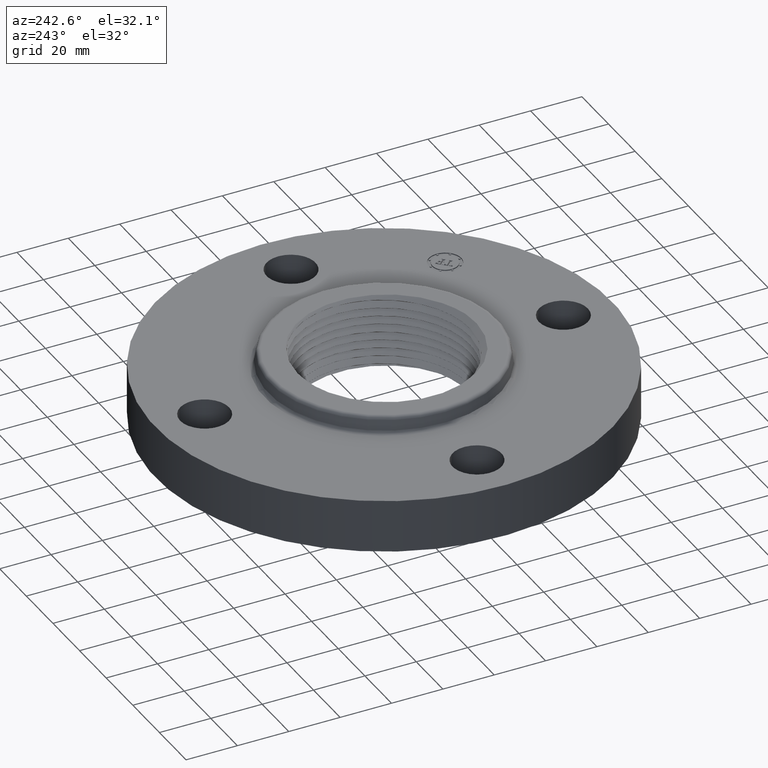
[diagram: clean part render]
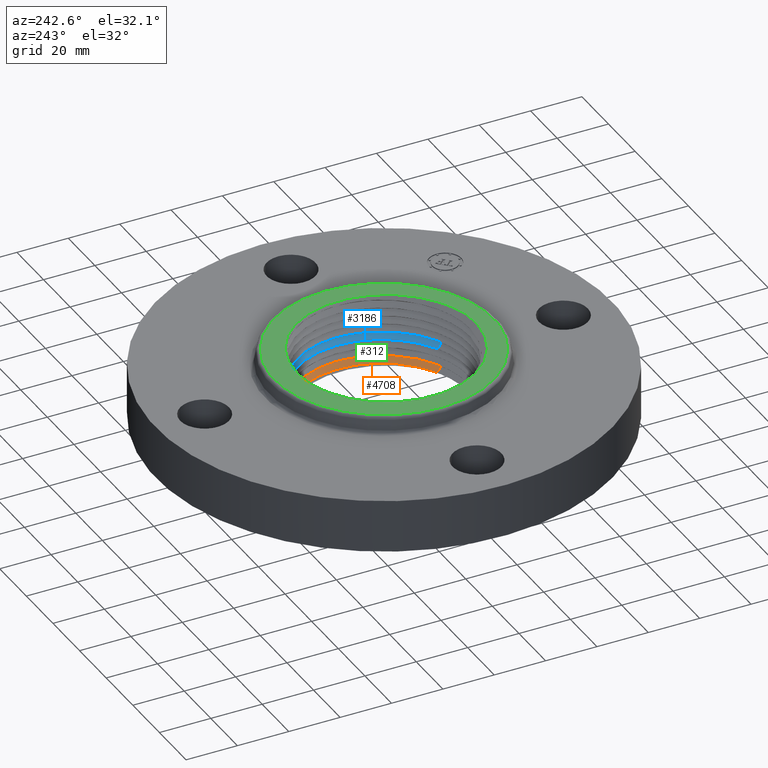
[diagram: same view with three faces highlighted in distinct colors, each labeled with its STEP entity id]
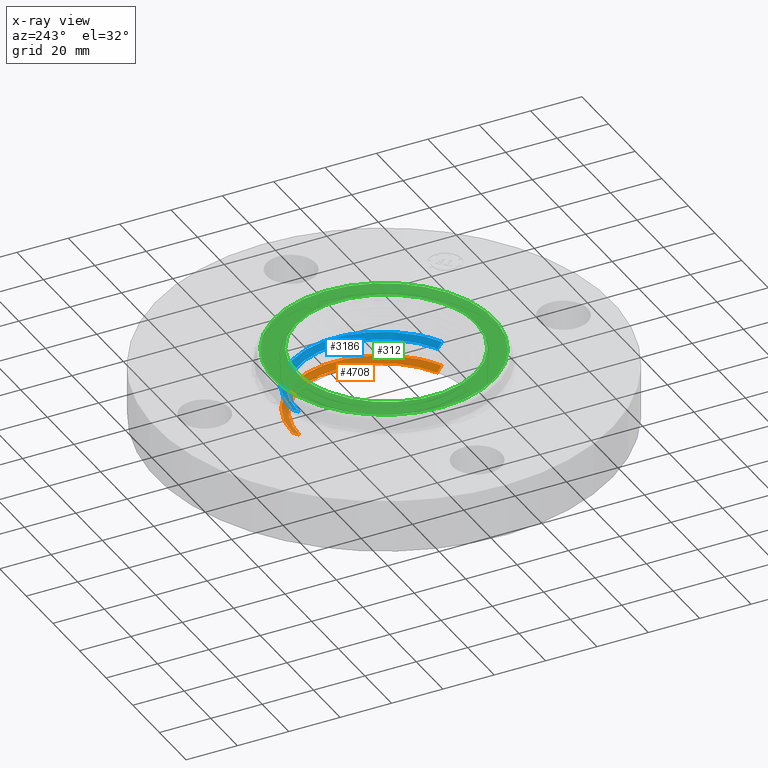
[diagram: x-ray of the same camera — body ghosted, the three highlighted faces saturated]
A machine part, auxiliary view with three faces highlighted in distinct colors.
The next image is the same camera in x-ray (body ghosted, the three faces saturated) — at least one of them is partly hidden behind the body in this view.
Their STEP definitions:

[orange] entity #4708 — the highlighted face is a freeform B-spline surface patch.
#4407=CARTESIAN_POINT('Vertex',(9.31382288949E-007,1.39982578902,0.118438258662)) ;
#4411=CARTESIAN_POINT('Control Point',(9.31382290181E-007,1.39982578902,0.118438258662)) ;
#4412=CARTESIAN_POINT('Control Point',(0.369802707792,1.39966130537,0.113182624294)) ;
#4413=CARTESIAN_POINT('Control Point',(0.739551260054,1.27738039289,0.107926203491)) ;
#4414=CARTESIAN_POINT('Control Point',(1.05402522751,1.03306920796,0.102686700707)) ;
#4415=CARTESIAN_POINT('Control Point',(1.47376987066,0.376890566379,0.092170637837)) ;
#4416=CARTESIAN_POINT('Control Point',(1.41993260763,-0.400199826442,0.0816513746025)) ;
#4417=CARTESIAN_POINT('Control Point',(1.26099978775,-0.765383205665,0.076408721246)) ;
#4418=CARTESIAN_POINT('Control Point',(0.994948604297,-1.04986639089,0.0711474768857)) ;
#4419=CARTESIAN_POINT('Control Point',(0.67032407038,-1.22702192539,0.0658854425888)) ;
#4420=CARTESIAN_POINT('Vertex',(0.67032407038,-1.22702192539,0.0658854425888)) ;
#4542=CARTESIAN_POINT('Vertex',(0.622123195445,-1.13874545108,0.00731089656578)) ;
#4546=CARTESIAN_POINT('Control Point',(0.622123195445,-1.13874545108,0.00731089656578)) ;
#4547=CARTESIAN_POINT('Control Point',(0.682134088852,-1.10599742415,0.00835903840812)) ;
#4548=CARTESIAN_POINT('Control Point',(0.739989298286,-1.06929673685,0.00940716533366)) ;
#4549=CARTESIAN_POINT('Control Point',(0.795626976139,-1.0286616642,0.010460168154)) ;
#4550=CARTESIAN_POINT('Control Point',(0.901388717749,-0.939987117578,0.0125709674638)) ;
#4551=CARTESIAN_POINT('Control Point',(0.994499817701,-0.838138786693,0.0146814611059)) ;
#4552=CARTESIAN_POINT('Control Point',(1.03746917195,-0.784311538002,0.0157341582583)) ;
#4553=CARTESIAN_POINT('Control Point',(1.11558509188,-0.672123842014,0.0178254736205)) ;
#4554=CARTESIAN_POINT('Control Point',(1.17835102095,-0.55069027181,0.0199163783074)) ;
#4555=CARTESIAN_POINT('Control Point',(1.20595084804,-0.487575788431,0.0209690330363)) ;
#4556=CARTESIAN_POINT('Control Point',(1.25269038436,-0.357418515565,0.023083571455)) ;
#4557=CARTESIAN_POINT('Control Point',(1.28180247222,-0.222205732096,0.025198169952)) ;
#4558=CARTESIAN_POINT('Control Point',(1.29172993297,-0.154022865663,0.0262508847591)) ;
#4559=CARTESIAN_POINT('Control Point',(1.30264370089,-0.0174715565392,0.0283457397308)) ;
#4560=CARTESIAN_POINT('Control Point',(1.29556535513,0.119366863189,0.0304413795119)) ;
#4561=CARTESIAN_POINT('Control Point',(1.28747406143,0.187713317571,0.0314932451359)) ;
#4562=CARTESIAN_POINT('Control Point',(1.26235205817,0.322689492087,0.0335923438907)) ;
#4563=CARTESIAN_POINT('Control Point',(1.21972222557,0.45319997271,0.0356913783486)) ;
#4564=CARTESIAN_POINT('Control Point',(1.19409073603,0.517152870912,0.0367437385913)) ;
#4565=CARTESIAN_POINT('Control Point',(1.13429604769,0.641547141808,0.0388532413919)) ;
#4566=CARTESIAN_POINT('Control Point',(1.05861939814,0.756943964063,0.040962439905)) ;
#4567=CARTESIAN_POINT('Control Point',(1.01708380769,0.811886854091,0.0420144958602)) ;
#4568=CARTESIAN_POINT('Control Point',(0.927688945172,0.915318003619,0.0441045648861)) ;
#4569=CARTESIAN_POINT('Control Point',(0.825546819348,1.00616914608,0.0461942258606)) ;
#4570=CARTESIAN_POINT('Control Point',(0.771219186826,1.04852333395,0.0472462406019)) ;
#4571=CARTESIAN_POINT('Control Point',(0.656669330982,1.12601035985,0.0493594746762)) ;
#4572=CARTESIAN_POINT('Control Point',(0.532865239859,1.18767850102,0.0514727674693)) ;
#4573=CARTESIAN_POINT('Control Point',(0.469259846037,1.21417357081,0.0525248409293)) ;
#4574=CARTESIAN_POINT('Control Point',(0.339683281827,1.25854257577,0.0546180036884)) ;
#4575=CARTESIAN_POINT('Control Point',(0.205378651472,1.28556776635,0.0567119473378)) ;
#4576=CARTESIAN_POINT('Control Point',(0.137185031315,1.29465547991,0.0577627364483)) ;
#4577=CARTESIAN_POINT('Control Point',(0.0685842834184,1.29921537755,0.0588132320117)) ;
#4578=CARTESIAN_POINT('Control Point',(-1.97097828325E-005,1.29924716413,0.0598637122694)) ;
#4579=CARTESIAN_POINT('Vertex',(-1.97097828301E-005,1.29924716413,0.0598637122694)) ;
#4676=CARTESIAN_POINT('Control Point',(-1.99816522472E-005,1.29792242049,0.0590922137744)) ;
#4677=CARTESIAN_POINT('Control Point',(9.31382290181E-007,1.39982578902,0.118438258662)) ;
#4678=CARTESIAN_POINT('Control Point',(0.342861156546,1.29776346158,0.0538365794544)) ;
#4679=CARTESIAN_POINT('Control Point',(0.369802707792,1.39966130537,0.113182624294)) ;
#4680=CARTESIAN_POINT('Control Point',(0.685686867311,1.18437787078,0.0485801622007)) ;
#4681=CARTESIAN_POINT('Control Point',(0.739551260054,1.27738039289,0.107926203491)) ;
#4682=CARTESIAN_POINT('Control Point',(0.977255698262,0.957850076201,0.0433406555821)) ;
#4683=CARTESIAN_POINT('Control Point',(1.05402522751,1.03306920796,0.102686700707)) ;
#4684=CARTESIAN_POINT('Control Point',(1.36641675128,0.349452765133,0.032824593489)) ;
#4685=CARTESIAN_POINT('Control Point',(1.47376987066,0.376890566379,0.092170637837)) ;
#4686=CARTESIAN_POINT('Control Point',(1.31648585199,-0.371025615225,0.0223053296313)) ;
#4687=CARTESIAN_POINT('Control Point',(1.41993260763,-0.400199826442,0.0816513746025)) ;
#4688=CARTESIAN_POINT('Control Point',(1.16912505245,-0.709597639027,0.0170626829677)) ;
#4689=CARTESIAN_POINT('Control Point',(1.26099978775,-0.765383205665,0.076408721246)) ;
#4690=CARTESIAN_POINT('Control Point',(0.92245621874,-0.973344250665,0.0118014323439)) ;
#4691=CARTESIAN_POINT('Control Point',(0.994948604297,-1.04986639089,0.0711474768857)) ;
#4692=CARTESIAN_POINT('Control Point',(0.621488330913,-1.13758274185,0.00653939808613)) ;
#4693=CARTESIAN_POINT('Control Point',(0.67032407038,-1.22702192539,0.0658854425888)) ;
#4695=CARTESIAN_POINT('Control Point',(0.622123195445,-1.13874545108,0.00731089656578)) ;
#4696=CARTESIAN_POINT('Control Point',(0.67032407038,-1.22702192539,0.0658854425888)) ;
#4699=CARTESIAN_POINT('Control Point',(-1.97097828295E-005,1.29924716413,0.0598637122694)) ;
#4700=CARTESIAN_POINT('Control Point',(9.31382290144E-007,1.39982578902,0.118438258662)) ;
#4703=ORIENTED_EDGE('',*,*,#4697,.F.) ;
#4704=ORIENTED_EDGE('',*,*,#4422,.F.) ;
#4705=ORIENTED_EDGE('',*,*,#4701,.T.) ;
#4706=ORIENTED_EDGE('',*,*,#4581,.F.) ;
#4708=ADVANCED_FACE('PartBody',(#4707),#4675,.T.) ;
#4410=B_SPLINE_CURVE_WITH_KNOTS('',5,(#4411,#4412,#4413,#4414,#4415,#4416,#4417,#4418,#4419),.UNSPECIFIED.,.F.,.U.,(6,3,6),(0.,45.3240913958,90.6482531977),.UNSPECIFIED.) ;
#4545=B_SPLINE_CURVE_WITH_KNOTS('',5,(#4546,#4547,#4548,#4549,#4550,#4551,#4552,#4553,#4554,#4555,#4556,#4557,#4558,#4559,#4560,#4561,#4562,#4563,#4564,#4565,#4566,#4567,#4568,#4569,#4570,#4571,#4572,#4573,#4574,#4575,#4576,#4577,#4578),.UNSPECIFIED.,.F.,.U.,(6,3,3,3,3,3,3,3,3,3,6),(0.,12.8146024347,25.6292048695,38.3943346944,51.1594645192,64.019669691,76.8304417573,89.6412138236,102.402640957,115.164068091,128.015015127),.UNSPECIFIED.) ;
#4694=B_SPLINE_CURVE_WITH_KNOTS('',1,(#4695,#4696),.UNSPECIFIED.,.F.,.U.,(2,2),(-1.45870575259,1.49764450472),.UNSPECIFIED.) ;
#4698=B_SPLINE_CURVE_WITH_KNOTS('',1,(#4699,#4700),.UNSPECIFIED.,.F.,.U.,(2,2),(-1.45870575206,1.49764450472),.UNSPECIFIED.) ;
#4675=B_SPLINE_SURFACE_WITH_KNOTS('',5,1,((#4676,#4677),(#4678,#4679),(#4680,#4681),(#4682,#4683),(#4684,#4685),(#4686,#4687),(#4688,#4689),(#4690,#4691),(#4692,#4693)),.UNSPECIFIED.,.F.,.F.,.U.,(6,3,6),(2,2),(0.,45.3240913958,90.6482531977),(-1.49764450472,1.49764450472),.UNSPECIFIED.) ;
#4422=EDGE_CURVE('',#4408,#4421,#4410,.T.) ;
#4581=EDGE_CURVE('',#4543,#4580,#4545,.T.) ;
#4697=EDGE_CURVE('',#4421,#4543,#4694,.F.) ;
#4701=EDGE_CURVE('',#4408,#4580,#4698,.F.) ;
#4702=EDGE_LOOP('',(#4703,#4704,#4705,#4706)) ;
#4707=FACE_OUTER_BOUND('',#4702,.T.) ;
#4408=VERTEX_POINT('',#4407) ;
#4421=VERTEX_POINT('',#4420) ;
#4543=VERTEX_POINT('',#4542) ;
#4580=VERTEX_POINT('',#4579) ;

[blue] entity #3186 — the highlighted face is a freeform B-spline surface patch.
#2976=CARTESIAN_POINT('Vertex',(9.23641593935E-007,1.41154446953,0.493438258782)) ;
#3010=CARTESIAN_POINT('Control Point',(9.23641591798E-007,1.41154446953,0.493438258782)) ;
#3011=CARTESIAN_POINT('Control Point',(0.372900259791,1.41137998714,0.48818259968)) ;
#3012=CARTESIAN_POINT('Control Point',(0.745747035837,1.28807560508,0.482926147842)) ;
#3013=CARTESIAN_POINT('Control Point',(1.06285545608,1.041717534,0.477686633142)) ;
#3014=CARTESIAN_POINT('Control Point',(1.48611598084,0.38004270233,0.467170560427)) ;
#3015=CARTESIAN_POINT('Control Point',(1.43182797706,-0.403556696276,0.456651313261)) ;
#3016=CARTESIAN_POINT('Control Point',(1.27156418376,-0.771798991813,0.451408651526)) ;
#3017=CARTESIAN_POINT('Control Point',(1.00328524096,-1.0586654275,0.446147449088)) ;
#3018=CARTESIAN_POINT('Control Point',(0.675942311903,-1.23730603133,0.440885442708)) ;
#3019=CARTESIAN_POINT('Vertex',(0.675942311903,-1.23730603133,0.440885442708)) ;
#3101=CARTESIAN_POINT('Control Point',(-1.18904322799E-005,1.31096584466,0.434863710324)) ;
#3102=CARTESIAN_POINT('Control Point',(9.23641594045E-007,1.41154446953,0.493438258782)) ;
#3103=CARTESIAN_POINT('Vertex',(-1.18904322797E-005,1.31096584466,0.434863710324)) ;
#3121=CARTESIAN_POINT('Control Point',(-1.20592093342E-005,1.30964110093,0.434092211744)) ;
#3122=CARTESIAN_POINT('Control Point',(9.23641591798E-007,1.41154446953,0.493438258782)) ;
#3123=CARTESIAN_POINT('Control Point',(0.345966514014,1.30948004831,0.428836552661)) ;
#3124=CARTESIAN_POINT('Control Point',(0.372900259791,1.41137998714,0.48818259968)) ;
#3125=CARTESIAN_POINT('Control Point',(0.691889617515,1.19506896899,0.42358009804)) ;
#3126=CARTESIAN_POINT('Control Point',(0.745747035837,1.28807560508,0.482926147842)) ;
#3127=CARTESIAN_POINT('Control Point',(0.986091517823,0.966492682596,0.418340586174)) ;
#3128=CARTESIAN_POINT('Control Point',(1.06285545608,1.041717534,0.477686633142)) ;
#3129=CARTESIAN_POINT('Control Point',(1.37876490245,0.352596953731,0.407824513506)) ;
#3130=CARTESIAN_POINT('Control Point',(1.48611598084,0.38004270233,0.467170560427)) ;
#3131=CARTESIAN_POINT('Control Point',(1.32837905731,-0.37439022906,0.397305266388)) ;
#3132=CARTESIAN_POINT('Control Point',(1.43182797706,-0.403556696276,0.456651313261)) ;
#3133=CARTESIAN_POINT('Control Point',(1.17968525337,-0.716020368597,0.392062585768)) ;
#3134=CARTESIAN_POINT('Control Point',(1.27156418376,-0.771798991813,0.451408651526)) ;
#3135=CARTESIAN_POINT('Control Point',(0.93078701438,-0.982148874097,0.386801402264)) ;
#3136=CARTESIAN_POINT('Control Point',(1.00328524096,-1.0586654275,0.446147449088)) ;
#3137=CARTESIAN_POINT('Control Point',(0.627099596122,-1.14787065888,0.38153939591)) ;
#3138=CARTESIAN_POINT('Control Point',(0.675942311903,-1.23730603133,0.440885442708)) ;
#3140=CARTESIAN_POINT('Control Point',(0.627734551396,-1.14903331867,0.38231089448)) ;
#3141=CARTESIAN_POINT('Control Point',(0.675942311903,-1.23730603133,0.440885442708)) ;
#3142=CARTESIAN_POINT('Vertex',(0.627734551396,-1.14903331867,0.38231089448)) ;
#3146=CARTESIAN_POINT('Control Point',(0.627734551396,-1.14903331867,0.38231089448)) ;
#3147=CARTESIAN_POINT('Control Point',(0.688286918338,-1.11598995363,0.383359026859)) ;
#3148=CARTESIAN_POINT('Control Point',(0.746664163065,-1.07895830878,0.384407142346)) ;
#3149=CARTESIAN_POINT('Control Point',(0.802804424298,-1.03795687415,0.385460142839)) ;
#3150=CARTESIAN_POINT('Control Point',(0.909521577085,-0.948482076425,0.387570936825)) ;
#3151=CARTESIAN_POINT('Control Point',(1.00347334291,-0.845714422876,0.38968141549)) ;
#3152=CARTESIAN_POINT('Control Point',(1.04683034893,-0.791401453845,0.390734100089)) ;
#3153=CARTESIAN_POINT('Control Point',(1.12565252643,-0.678200448438,0.39282543212)) ;
#3154=CARTESIAN_POINT('Control Point',(1.18898589856,-0.555670054607,0.394916352751)) ;
#3155=CARTESIAN_POINT('Control Point',(1.216834485,-0.491986251919,0.395968996931)) ;
#3156=CARTESIAN_POINT('Control Point',(1.26399513301,-0.360657871146,0.398083472473)) ;
#3157=CARTESIAN_POINT('Control Point',(1.2933703321,-0.224228512055,0.400198014004)) ;
#3158=CARTESIAN_POINT('Control Point',(1.30338828241,-0.155430808423,0.401250724435)) ;
#3159=CARTESIAN_POINT('Control Point',(1.3144018333,-0.0176452299703,0.403345608318)) ;
#3160=CARTESIAN_POINT('Control Point',(1.30726038385,0.120430318993,0.405441283371)) ;
#3161=CARTESIAN_POINT('Control Point',(1.29909650205,0.189393738267,0.40649315262)) ;
#3162=CARTESIAN_POINT('Control Point',(1.27374866445,0.325588068777,0.408592247559)) ;
#3163=CARTESIAN_POINT('Control Point',(1.23073503871,0.457276451327,0.410691278304)) ;
#3164=CARTESIAN_POINT('Control Point',(1.20487295296,0.521806964924,0.411743644782)) ;
#3165=CARTESIAN_POINT('Control Point',(1.14453928397,0.647325027943,0.413853160421)) ;
#3166=CARTESIAN_POINT('Control Point',(1.06817986881,0.763763929216,0.41596235998)) ;
#3167=CARTESIAN_POINT('Control Point',(1.02626956904,0.819202609306,0.417014409807)) ;
#3168=CARTESIAN_POINT('Control Point',(0.936067709106,0.923568739013,0.419104504345)) ;
#3169=CARTESIAN_POINT('Control Point',(0.833003323384,1.01524104821,0.421194187582)) ;
#3170=CARTESIAN_POINT('Control Point',(0.77818560602,1.05797716288,0.422246195812)) ;
#3171=CARTESIAN_POINT('Control Point',(0.662605160932,1.13616205435,0.424359376327)) ;
#3172=CARTESIAN_POINT('Control Point',(0.537687309783,1.19838619779,0.426472623093)) ;
#3173=CARTESIAN_POINT('Control Point',(0.473508543426,1.22512107991,0.427524697836)) ;
#3174=CARTESIAN_POINT('Control Point',(0.342760628735,1.26989219956,0.429617906855)) ;
#3175=CARTESIAN_POINT('Control Point',(0.207241573619,1.29716235065,0.431711904115)) ;
#3176=CARTESIAN_POINT('Control Point',(0.138432064528,1.30633238267,0.432762709157)) ;
#3177=CARTESIAN_POINT('Control Point',(0.0692117123712,1.31093364481,0.433813217481)) ;
#3178=CARTESIAN_POINT('Control Point',(-1.1890432279E-005,1.31096584466,0.434863710324)) ;
#3181=ORIENTED_EDGE('',*,*,#3144,.F.) ;
#3182=ORIENTED_EDGE('',*,*,#3021,.F.) ;
#3183=ORIENTED_EDGE('',*,*,#3105,.T.) ;
#3184=ORIENTED_EDGE('',*,*,#3179,.F.) ;
#3186=ADVANCED_FACE('PartBody',(#3185),#3120,.T.) ;
#3009=B_SPLINE_CURVE_WITH_KNOTS('',5,(#3010,#3011,#3012,#3013,#3014,#3015,#3016,#3017,#3018),.UNSPECIFIED.,.F.,.U.,(6,3,6),(0.,45.7171644095,91.4344191849),.UNSPECIFIED.) ;
#3100=B_SPLINE_CURVE_WITH_KNOTS('',1,(#3101,#3102),.UNSPECIFIED.,.F.,.U.,(2,2),(-1.4587057492,1.49764450472),.UNSPECIFIED.) ;
#3139=B_SPLINE_CURVE_WITH_KNOTS('',1,(#3140,#3141),.UNSPECIFIED.,.F.,.U.,(2,2),(-1.45870574951,1.49764450472),.UNSPECIFIED.) ;
#3145=B_SPLINE_CURVE_WITH_KNOTS('',5,(#3146,#3147,#3148,#3149,#3150,#3151,#3152,#3153,#3154,#3155,#3156,#3157,#3158,#3159,#3160,#3161,#3162,#3163,#3164,#3165,#3166,#3167,#3168,#3169,#3170,#3171,#3172,#3173,#3174,#3175,#3176,#3177,#3178),.UNSPECIFIED.,.F.,.U.,(6,3,3,3,3,3,3,3,3,3,6),(0.,12.8698040764,25.7396081528,38.5602327938,51.3808574348,64.2965907218,77.1626046513,90.0286185808,102.845587254,115.662555927,128.569132524),.UNSPECIFIED.) ;
#3120=B_SPLINE_SURFACE_WITH_KNOTS('',5,1,((#3121,#3122),(#3123,#3124),(#3125,#3126),(#3127,#3128),(#3129,#3130),(#3131,#3132),(#3133,#3134),(#3135,#3136),(#3137,#3138)),.UNSPECIFIED.,.F.,.F.,.U.,(6,3,6),(2,2),(0.,45.7171644095,91.4344191849),(-1.49764450472,1.49764450472),.UNSPECIFIED.) ;
#3021=EDGE_CURVE('',#2977,#3020,#3009,.T.) ;
#3105=EDGE_CURVE('',#2977,#3104,#3100,.F.) ;
#3144=EDGE_CURVE('',#3020,#3143,#3139,.F.) ;
#3179=EDGE_CURVE('',#3143,#3104,#3145,.T.) ;
#3180=EDGE_LOOP('',(#3181,#3182,#3183,#3184)) ;
#3185=FACE_OUTER_BOUND('',#3180,.T.) ;
#2977=VERTEX_POINT('',#2976) ;
#3020=VERTEX_POINT('',#3019) ;
#3104=VERTEX_POINT('',#3103) ;
#3143=VERTEX_POINT('',#3142) ;

[green] entity #312 — the highlighted planar face has unit normal (0, 0, -1).
#174=AXIS2_PLACEMENT_3D('Plane Axis2P3D',#171,#172,#173) ;
#178=AXIS2_PLACEMENT_3D('Circle Axis2P3D',#176,#177,$) ;
#187=AXIS2_PLACEMENT_3D('Circle Axis2P3D',#185,#186,$) ;
#196=AXIS2_PLACEMENT_3D('Circle Axis2P3D',#194,#195,$) ;
#171=CARTESIAN_POINT('Axis2P3D Location',(0.,1.68557227696,1.06)) ;
#176=CARTESIAN_POINT('Axis2P3D Location',(0.,0.,1.06)) ;
#180=CARTESIAN_POINT('Vertex',(0.808106396737,1.47922883707,1.06)) ;
#182=CARTESIAN_POINT('Vertex',(-0.808106396737,-1.47922883707,1.06)) ;
#185=CARTESIAN_POINT('Axis2P3D Location',(0.,0.,1.06)) ;
#194=CARTESIAN_POINT('Axis2P3D Location',(-2.79741234551E-016,0.,1.06)) ;
#198=CARTESIAN_POINT('Vertex',(-0.121641748804,1.32492898946,1.05999997691)) ;
#200=CARTESIAN_POINT('Vertex',(-0.00911456618055,1.33047001827,1.06000000894)) ;
#204=CARTESIAN_POINT('Control Point',(8.47151953675E-007,1.33073100438,1.06)) ;
#205=CARTESIAN_POINT('Control Point',(-0.00182248876876,1.33068505117,1.06)) ;
#206=CARTESIAN_POINT('Control Point',(-0.00364570435942,1.33063597415,1.06)) ;
#207=CARTESIAN_POINT('Control Point',(-0.00546880106443,1.33058377335,1.06)) ;
#208=CARTESIAN_POINT('Control Point',(-0.00729175453253,1.33052844958,1.06)) ;
#209=CARTESIAN_POINT('Control Point',(-0.00911456621147,1.33047000293,1.06)) ;
#210=CARTESIAN_POINT('Vertex',(8.47151953696E-007,1.33073100438,1.06)) ;
#214=CARTESIAN_POINT('Control Point',(0.680461110008,-1.24557737422,1.06)) ;
#215=CARTESIAN_POINT('Control Point',(0.774113154794,-1.19150403495,1.06)) ;
#216=CARTESIAN_POINT('Control Point',(0.862509447865,-1.12856901142,1.06)) ;
#217=CARTESIAN_POINT('Control Point',(0.944519627193,-1.0574413619,1.06)) ;
#218=CARTESIAN_POINT('Control Point',(1.09377431437,-0.900577318953,1.06)) ;
#219=CARTESIAN_POINT('Control Point',(1.21030366595,-0.718669772104,1.06)) ;
#220=CARTESIAN_POINT('Control Point',(1.2595930759,-0.622489121741,1.06)) ;
#221=CARTESIAN_POINT('Control Point',(1.31631954786,-0.479348320945,1.06)) ;
#222=CARTESIAN_POINT('Control Point',(1.35277794027,-0.330601855258,1.06)) ;
#223=CARTESIAN_POINT('Control Point',(1.36186323264,-0.285575813529,1.06)) ;
#224=CARTESIAN_POINT('Control Point',(1.38591528282,-0.13444369832,1.06)) ;
#225=CARTESIAN_POINT('Control Point',(1.38904572839,0.0188563277704,1.06)) ;
#226=CARTESIAN_POINT('Control Point',(1.38084909086,0.125898034114,1.06)) ;
#227=CARTESIAN_POINT('Control Point',(1.34392373703,0.336840655754,1.06)) ;
#228=CARTESIAN_POINT('Control Point',(1.26745682188,0.536195161766,1.06)) ;
#229=CARTESIAN_POINT('Control Point',(1.2196857905,0.63175943211,1.06)) ;
#230=CARTESIAN_POINT('Control Point',(1.10633905241,0.812216643135,1.06)) ;
#231=CARTESIAN_POINT('Control Point',(0.960730542444,0.96707484432,1.06)) ;
#232=CARTESIAN_POINT('Control Point',(0.880656245551,1.03709017737,1.06)) ;
#233=CARTESIAN_POINT('Control Point',(0.708133770727,1.16042553459,1.06)) ;
#234=CARTESIAN_POINT('Control Point',(0.515390978565,1.24784588529,1.06)) ;
#235=CARTESIAN_POINT('Control Point',(0.415157938644,1.28190808297,1.06)) ;
#236=CARTESIAN_POINT('Control Point',(0.271394660759,1.31544902373,1.06)) ;
#237=CARTESIAN_POINT('Control Point',(0.12520019501,1.32897940483,1.06)) ;
#238=CARTESIAN_POINT('Control Point',(0.0834626113079,1.33119904893,1.06)) ;
#239=CARTESIAN_POINT('Control Point',(0.0417002677482,1.33178194743,1.06)) ;
#240=CARTESIAN_POINT('Control Point',(8.47151954413E-007,1.33073100438,1.06)) ;
#241=CARTESIAN_POINT('Vertex',(0.680461110008,-1.24557737422,1.06)) ;
#245=CARTESIAN_POINT('Control Point',(0.289777463885,-1.39956527919,1.06)) ;
#246=CARTESIAN_POINT('Control Point',(0.372037875347,-1.38051046203,1.06)) ;
#247=CARTESIAN_POINT('Control Point',(0.452820487494,-1.35539542424,1.06)) ;
#248=CARTESIAN_POINT('Control Point',(0.531529416711,-1.32436504371,1.06)) ;
#249=CARTESIAN_POINT('Control Point',(0.607586542089,-1.28765409812,1.06)) ;
#250=CARTESIAN_POINT('Control Point',(0.680461110008,-1.24557737422,1.06)) ;
#251=CARTESIAN_POINT('Vertex',(0.289777463885,-1.39956527919,1.06)) ;
#255=CARTESIAN_POINT('Control Point',(0.289777463885,-1.39956527919,1.06)) ;
#256=CARTESIAN_POINT('Control Point',(0.232443945298,-1.41017217879,1.06)) ;
#257=CARTESIAN_POINT('Control Point',(0.174598645223,-1.41784934706,1.06)) ;
#258=CARTESIAN_POINT('Control Point',(0.116440551245,-1.42256174526,1.06)) ;
#259=CARTESIAN_POINT('Control Point',(0.0581730290033,-1.42429458098,1.06)) ;
#260=CARTESIAN_POINT('Control Point',(-9.87387139172E-007,-1.42305405331,1.06)) ;
#261=CARTESIAN_POINT('Vertex',(-9.8738713926E-007,-1.42305405331,1.06)) ;
#265=CARTESIAN_POINT('Control Point',(-9.87387136637E-007,-1.42305405331,1.06)) ;
#266=CARTESIAN_POINT('Control Point',(-0.108282443583,-1.42074501278,1.06)) ;
#267=CARTESIAN_POINT('Control Point',(-0.216240006254,-1.40813446987,1.06)) ;
#268=CARTESIAN_POINT('Control Point',(-0.32253565851,-1.38526943908,1.06)) ;
#269=CARTESIAN_POINT('Control Point',(-0.529272359759,-1.31961108946,1.06)) ;
#270=CARTESIAN_POINT('Control Point',(-0.719355269693,-1.21625773182,1.06)) ;
#271=CARTESIAN_POINT('Control Point',(-0.809072637815,-1.15566313796,1.06)) ;
#272=CARTESIAN_POINT('Control Point',(-0.975644840916,-1.01818161015,1.06)) ;
#273=CARTESIAN_POINT('Control Point',(-1.11276045426,-0.851910102137,1.06)) ;
#274=CARTESIAN_POINT('Control Point',(-1.17305749964,-0.76248606432,1.06)) ;
#275=CARTESIAN_POINT('Control Point',(-1.27556507237,-0.573416495021,1.06)) ;
#276=CARTESIAN_POINT('Control Point',(-1.33998674617,-0.368597733256,1.06)) ;
#277=CARTESIAN_POINT('Control Point',(-1.36216103408,-0.26350565159,1.06)) ;
#278=CARTESIAN_POINT('Control Point',(-1.38080854164,-0.0961980715651,1.06)) ;
#279=CARTESIAN_POINT('Control Point',(-1.37399221507,0.0712845632183,1.06)) ;
#280=CARTESIAN_POINT('Control Point',(-1.36814829416,0.131930828611,1.06)) ;
#281=CARTESIAN_POINT('Control Point',(-1.34748648311,0.267279876005,1.06)) ;
#282=CARTESIAN_POINT('Control Point',(-1.31018771933,0.398950190379,1.06)) ;
#283=CARTESIAN_POINT('Control Point',(-1.28444073678,0.470476900107,1.06)) ;
#284=CARTESIAN_POINT('Control Point',(-1.2109963349,0.637162331486,1.06)) ;
#285=CARTESIAN_POINT('Control Point',(-1.11091807578,0.7894437641,1.06)) ;
#286=CARTESIAN_POINT('Control Point',(-1.04410803147,0.872203222115,1.06)) ;
#287=CARTESIAN_POINT('Control Point',(-0.928095933945,0.990181664917,1.06)) ;
#288=CARTESIAN_POINT('Control Point',(-0.796206487155,1.088753488,1.06)) ;
#289=CARTESIAN_POINT('Control Point',(-0.747002947236,1.12148506616,1.06)) ;
#290=CARTESIAN_POINT('Control Point',(-0.696135293556,1.15143714821,1.06)) ;
#291=CARTESIAN_POINT('Control Point',(-0.64381579003,1.17850292307,1.06)) ;
#292=CARTESIAN_POINT('Vertex',(-0.64381579003,1.17850292307,1.06)) ;
#296=CARTESIAN_POINT('Control Point',(-0.64381579003,1.17850292307,1.06)) ;
#297=CARTESIAN_POINT('Control Point',(-0.546579670705,1.22880483219,1.06)) ;
#298=CARTESIAN_POINT('Control Point',(-0.444329236273,1.26913713357,1.06)) ;
#299=CARTESIAN_POINT('Control Point',(-0.338417399375,1.2988178045,1.06)) ;
#300=CARTESIAN_POINT('Control Point',(-0.230348987605,1.31744350995,1.06)) ;
#301=CARTESIAN_POINT('Control Point',(-0.121641735467,1.32492894463,1.06)) ;
#172=DIRECTION('Axis2P3D Direction',(0.,0.,-0.0393700787402)) ;
#173=DIRECTION('Axis2P3D XDirection',(0.0393700787402,0.,0.)) ;
#177=DIRECTION('Axis2P3D Direction',(0.,0.,-0.0393700787402)) ;
#186=DIRECTION('Axis2P3D Direction',(0.,0.,-0.0393700787402)) ;
#195=DIRECTION('Axis2P3D Direction',(0.,0.,-0.0393700787402)) ;
#191=ORIENTED_EDGE('',*,*,#184,.F.) ;
#192=ORIENTED_EDGE('',*,*,#189,.F.) ;
#304=ORIENTED_EDGE('',*,*,#202,.T.) ;
#305=ORIENTED_EDGE('',*,*,#212,.F.) ;
#306=ORIENTED_EDGE('',*,*,#243,.F.) ;
#307=ORIENTED_EDGE('',*,*,#253,.F.) ;
#308=ORIENTED_EDGE('',*,*,#263,.T.) ;
#309=ORIENTED_EDGE('',*,*,#294,.T.) ;
#310=ORIENTED_EDGE('',*,*,#302,.T.) ;
#311=FACE_BOUND('',#303,.T.) ;
#312=ADVANCED_FACE('PartBody',(#193,#311),#175,.F.) ;
#203=B_SPLINE_CURVE_WITH_KNOTS('',5,(#204,#205,#206,#207,#208,#209),.UNSPECIFIED.,.F.,.U.,(6,6),(0.,0.333988931496),.UNSPECIFIED.) ;
#213=B_SPLINE_CURVE_WITH_KNOTS('',5,(#214,#215,#216,#217,#218,#219,#220,#221,#222,#223,#224,#225,#226,#227,#228,#229,#230,#231,#232,#233,#234,#235,#236,#237,#238,#239,#240),.UNSPECIFIED.,.F.,.U.,(6,3,3,3,3,3,3,3,6),(0.,19.1602435769,38.3223130096,46.5341720597,65.7023106829,84.8916033712,104.0930458,123.281181008,130.919458064),.UNSPECIFIED.) ;
#244=B_SPLINE_CURVE_WITH_KNOTS('',5,(#245,#246,#247,#248,#249,#250),.UNSPECIFIED.,.F.,.U.,(6,6),(0.,14.9093858538),.UNSPECIFIED.) ;
#254=B_SPLINE_CURVE_WITH_KNOTS('',5,(#255,#256,#257,#258,#259,#260),.UNSPECIFIED.,.F.,.U.,(6,6),(0.,10.295097888),.UNSPECIFIED.) ;
#264=B_SPLINE_CURVE_WITH_KNOTS('',5,(#265,#266,#267,#268,#269,#270,#271,#272,#273,#274,#275,#276,#277,#278,#279,#280,#281,#282,#283,#284,#285,#286,#287,#288,#289,#290,#291),.UNSPECIFIED.,.F.,.U.,(6,3,3,3,3,3,3,3,6),(0.,19.1626478659,38.3401678573,57.5274561025,76.6984804115,87.6447083415,101.321918606,120.470742825,131.19234896),.UNSPECIFIED.) ;
#295=B_SPLINE_CURVE_WITH_KNOTS('',5,(#296,#297,#298,#299,#300,#301),.UNSPECIFIED.,.F.,.U.,(6,6),(0.,19.9261709884),.UNSPECIFIED.) ;
#179=CIRCLE('generated circle',#178,1.68557227696) ;
#188=CIRCLE('generated circle',#187,1.68557227696) ;
#197=CIRCLE('generated circle',#196,1.33050123791) ;
#184=EDGE_CURVE('',#181,#183,#179,.T.) ;
#189=EDGE_CURVE('',#183,#181,#188,.T.) ;
#202=EDGE_CURVE('',#199,#201,#197,.T.) ;
#212=EDGE_CURVE('',#211,#201,#203,.T.) ;
#243=EDGE_CURVE('',#242,#211,#213,.T.) ;
#253=EDGE_CURVE('',#252,#242,#244,.T.) ;
#263=EDGE_CURVE('',#252,#262,#254,.T.) ;
#294=EDGE_CURVE('',#262,#293,#264,.T.) ;
#302=EDGE_CURVE('',#293,#199,#295,.T.) ;
#190=EDGE_LOOP('',(#191,#192)) ;
#303=EDGE_LOOP('',(#304,#305,#306,#307,#308,#309,#310)) ;
#193=FACE_OUTER_BOUND('',#190,.T.) ;
#175=PLANE('',#174) ;
#181=VERTEX_POINT('',#180) ;
#183=VERTEX_POINT('',#182) ;
#199=VERTEX_POINT('',#198) ;
#201=VERTEX_POINT('',#200) ;
#211=VERTEX_POINT('',#210) ;
#242=VERTEX_POINT('',#241) ;
#252=VERTEX_POINT('',#251) ;
#262=VERTEX_POINT('',#261) ;
#293=VERTEX_POINT('',#292) ;